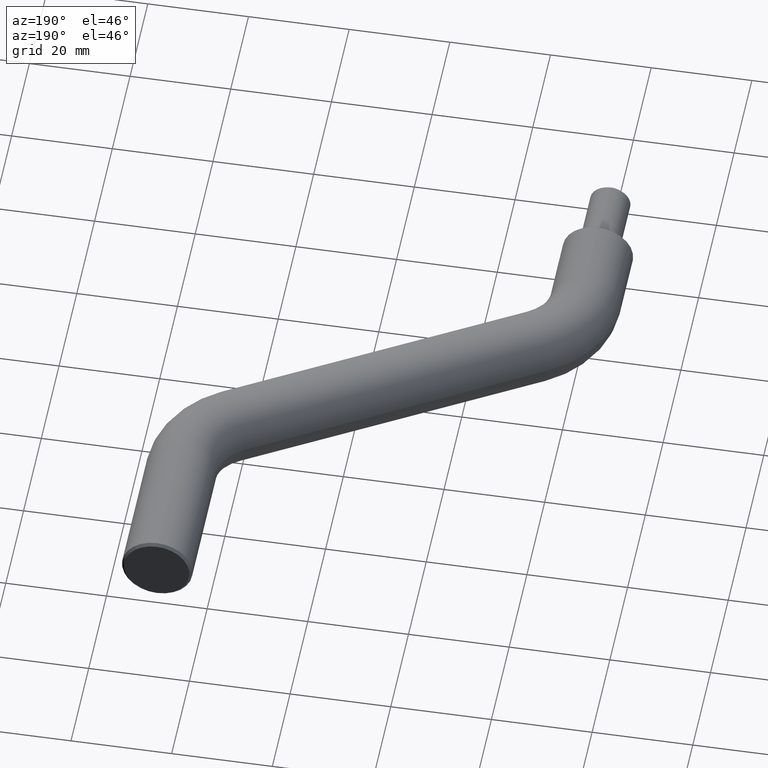
[diagram: clean part render]
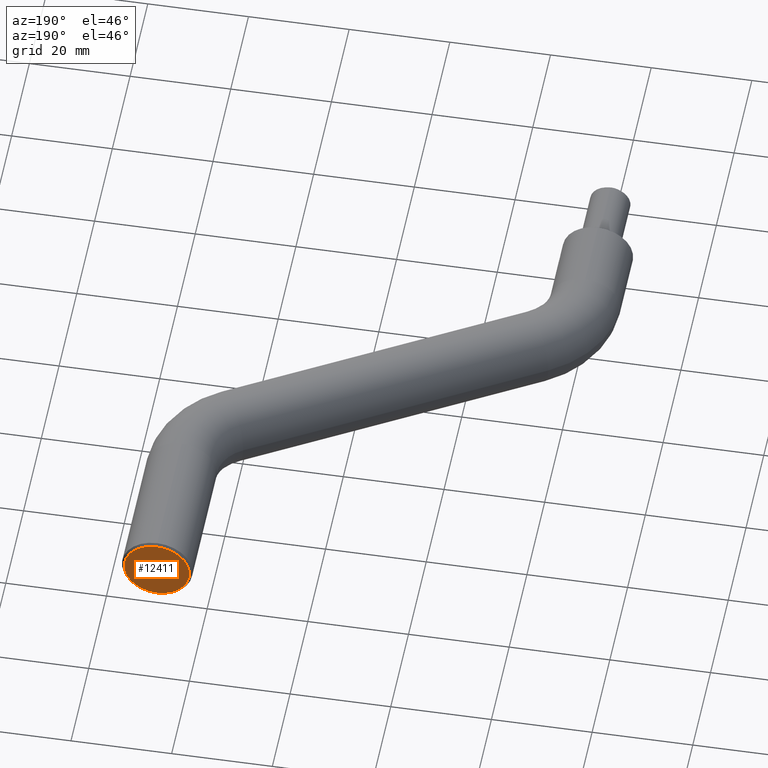
[diagram: same view with one face highlighted and labeled with its STEP entity id]
A machine part, auxiliary view. The second image highlights one B-rep face of the part: STEP entity #12411.
In plain terms, the highlighted planar face has unit normal (-0, 1, 0).
Its self-contained STEP definition (entity closure, byte-faithful):
#199 = EDGE_CURVE ( 'NONE', #8444, #9286, #1973, .T. ) ;
#612 = CARTESIAN_POINT ( 'NONE',  ( 70.00000000000000000, 100.0000000000000000, -6.500000000000041700 ) ) ;
#1702 = CIRCLE ( 'NONE', #10117, 6.500000000000047100 ) ;
#1973 = CIRCLE ( 'NONE', #5705, 6.500000000000047100 ) ;
#2179 = AXIS2_PLACEMENT_3D ( 'NONE', #10596, #7330, #5138 ) ;
#2939 = CARTESIAN_POINT ( 'NONE',  ( 70.00000000000000000, 100.0000000000000000, 6.500000000000041700 ) ) ;
#3707 = DIRECTION ( 'NONE',  ( -1.000000000000000000, 0.0000000000000000000, 0.0000000000000000000 ) ) ;
#5138 = DIRECTION ( 'NONE',  ( 0.0000000000000000000, 0.0000000000000000000, 1.000000000000000000 ) ) ;
#5705 = AXIS2_PLACEMENT_3D ( 'NONE', #5903, #11303, #3707 ) ;
#5903 = CARTESIAN_POINT ( 'NONE',  ( 70.00000000000000000, 100.0000000000000000, 0.0000000000000000000 ) ) ;
#6212 = ORIENTED_EDGE ( 'NONE', *, *, #199, .T. ) ;
#7330 = DIRECTION ( 'NONE',  ( -7.216449660063517500E-016, 1.000000000000000000, 0.0000000000000000000 ) ) ;
#8207 = EDGE_LOOP ( 'NONE', ( #13170, #6212 ) ) ;
#8444 = VERTEX_POINT ( 'NONE', #2939 ) ;
#8508 = PLANE ( 'NONE',  #2179 ) ;
#9284 = DIRECTION ( 'NONE',  ( -1.000000000000000000, 0.0000000000000000000, 0.0000000000000000000 ) ) ;
#9286 = VERTEX_POINT ( 'NONE', #612 ) ;
#10117 = AXIS2_PLACEMENT_3D ( 'NONE', #12734, #10546, #9284 ) ;
#10546 = DIRECTION ( 'NONE',  ( -7.216449660063517500E-016, 1.000000000000000000, 0.0000000000000000000 ) ) ;
#10596 = CARTESIAN_POINT ( 'NONE',  ( 70.00000000000000000, 100.0000000000000000, 0.0000000000000000000 ) ) ;
#11303 = DIRECTION ( 'NONE',  ( -7.216449660063517500E-016, 1.000000000000000000, 0.0000000000000000000 ) ) ;
#12328 = EDGE_CURVE ( 'NONE', #9286, #8444, #1702, .T. ) ;
#12411 = ADVANCED_FACE ( 'NONE', ( #13054 ), #8508, .T. ) ;
#12734 = CARTESIAN_POINT ( 'NONE',  ( 70.00000000000000000, 100.0000000000000000, 0.0000000000000000000 ) ) ;
#13054 = FACE_OUTER_BOUND ( 'NONE', #8207, .T. ) ;
#13170 = ORIENTED_EDGE ( 'NONE', *, *, #12328, .T. ) ;